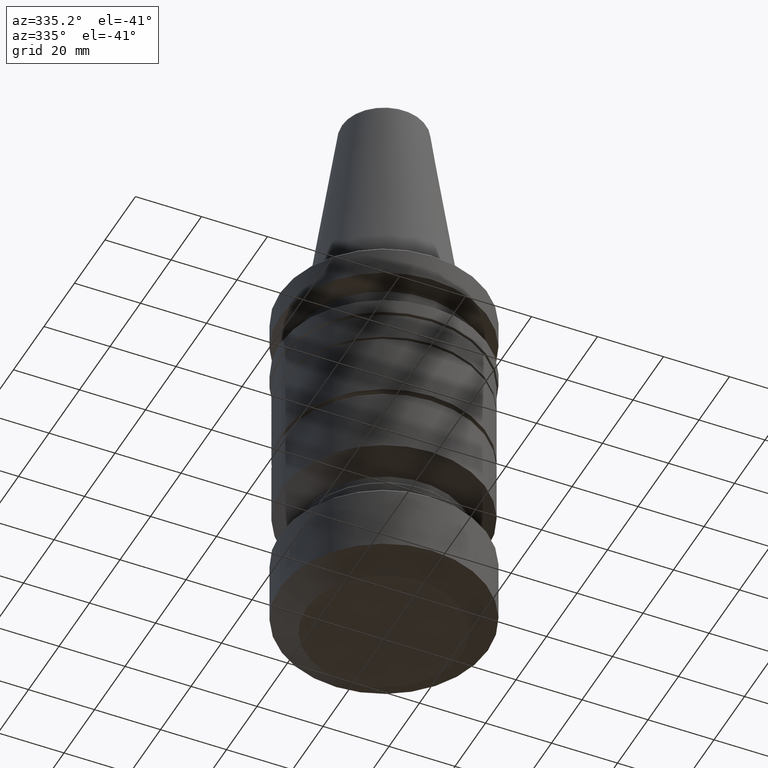
[diagram: clean part render]
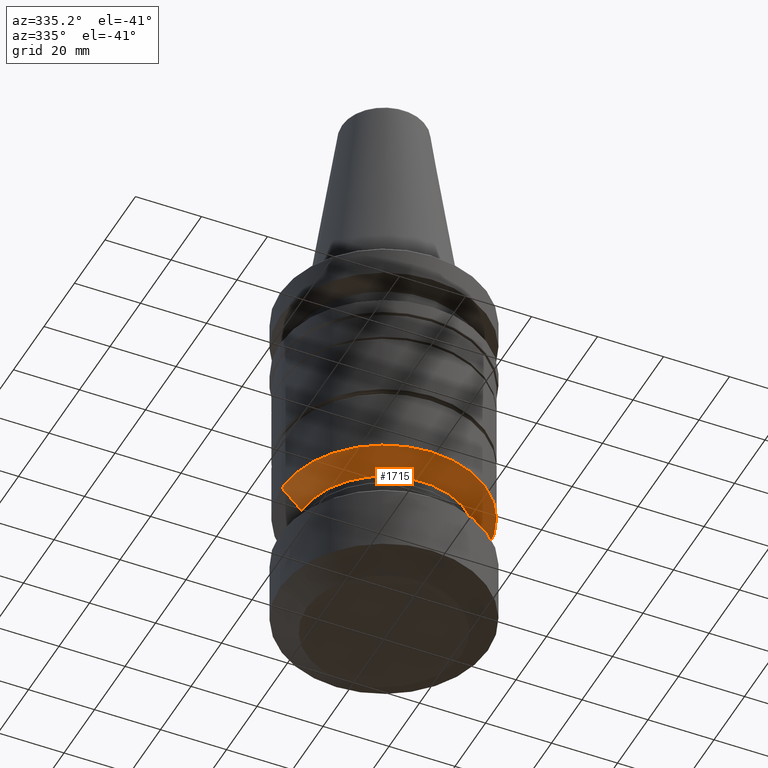
[diagram: same view with one face highlighted and labeled with its STEP entity id]
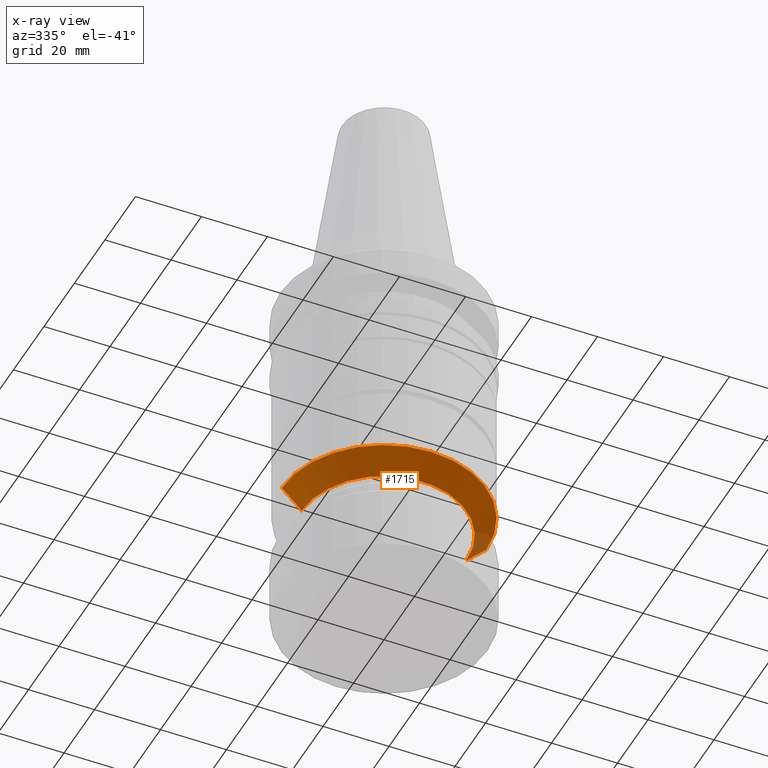
[diagram: x-ray of the same camera — body ghosted, the highlighted face saturated]
A machine part, auxiliary view. The second image highlights one B-rep face of the part: STEP entity #1715.
The next image is the same camera in x-ray: the body ghosted, the highlighted face saturated — about 4% of this face is hidden behind the body in this view.
In plain terms, the highlighted conical surface has half-angle 45 deg.
Its self-contained STEP definition (entity closure, byte-faithful):
#31 = CIRCLE ( 'NONE', #1655, 30.99999999999980800 ) ;
#63 = ORIENTED_EDGE ( 'NONE', *, *, #1005, .F. ) ;
#75 = DIRECTION ( 'NONE',  ( 0.7071067811865477900, 0.0000000000000000000, 0.7071067811865473500 ) ) ;
#106 = DIRECTION ( 'NONE',  ( 1.000000000000000000, 0.0000000000000000000, 0.0000000000000000000 ) ) ;
#137 = CARTESIAN_POINT ( 'NONE',  ( 0.0000000000000000000, 0.0000000000000000000, -80.05000000000661900 ) ) ;
#264 = DIRECTION ( 'NONE',  ( -0.0000000000000000000, -0.0000000000000000000, 1.000000000000000000 ) ) ;
#268 = VECTOR ( 'NONE', #417, 999.9999999999998900 ) ;
#329 = CARTESIAN_POINT ( 'NONE',  ( -30.99999999999980800, 3.796405077356772200E-015, -74.00000000000650900 ) ) ;
#417 = DIRECTION ( 'NONE',  ( -0.7071067811865477900, 8.659560562354936600E-017, 0.7071067811865473500 ) ) ;
#435 = DIRECTION ( 'NONE',  ( -0.0000000000000000000, -0.0000000000000000000, 1.000000000000000000 ) ) ;
#477 = CARTESIAN_POINT ( 'NONE',  ( 24.94999999999969400, 0.0000000000000000000, -80.05000000000661900 ) ) ;
#480 = AXIS2_PLACEMENT_3D ( 'NONE', #137, #264, #1014 ) ;
#621 = VERTEX_POINT ( 'NONE', #477 ) ;
#918 = FACE_OUTER_BOUND ( 'NONE', #1788, .T. ) ;
#950 = CARTESIAN_POINT ( 'NONE',  ( 24.94999999999969400, 0.0000000000000000000, -80.05000000000661900 ) ) ;
#989 = DIRECTION ( 'NONE',  ( -0.0000000000000000000, -0.0000000000000000000, 1.000000000000000000 ) ) ;
#1002 = CIRCLE ( 'NONE', #1191, 24.94999999999969400 ) ;
#1005 = EDGE_CURVE ( 'NONE', #1205, #1846, #31, .T. ) ;
#1014 = DIRECTION ( 'NONE',  ( 1.000000000000000000, 0.0000000000000000000, 0.0000000000000000000 ) ) ;
#1042 = LINE ( 'NONE', #1631, #268 ) ;
#1094 = ORIENTED_EDGE ( 'NONE', *, *, #1391, .T. ) ;
#1143 = ORIENTED_EDGE ( 'NONE', *, *, #1241, .T. ) ;
#1153 = VERTEX_POINT ( 'NONE', #1541 ) ;
#1191 = AXIS2_PLACEMENT_3D ( 'NONE', #1353, #435, #1502 ) ;
#1205 = VERTEX_POINT ( 'NONE', #329 ) ;
#1241 = EDGE_CURVE ( 'NONE', #621, #1846, #1871, .T. ) ;
#1305 = ORIENTED_EDGE ( 'NONE', *, *, #1794, .F. ) ;
#1320 = VECTOR ( 'NONE', #75, 999.9999999999998900 ) ;
#1353 = CARTESIAN_POINT ( 'NONE',  ( 0.0000000000000000000, 0.0000000000000000000, -80.05000000000661900 ) ) ;
#1362 = CONICAL_SURFACE ( 'NONE', #480, 24.94999999999969400, 0.7853981633974485000 ) ;
#1391 = EDGE_CURVE ( 'NONE', #1153, #621, #1002, .T. ) ;
#1502 = DIRECTION ( 'NONE',  ( 1.000000000000000000, 0.0000000000000000000, 0.0000000000000000000 ) ) ;
#1541 = CARTESIAN_POINT ( 'NONE',  ( -24.94999999999969400, 3.425949420614690400E-015, -80.05000000000661900 ) ) ;
#1631 = CARTESIAN_POINT ( 'NONE',  ( -24.94999999999969400, 3.055493763872608900E-015, -80.05000000000661900 ) ) ;
#1655 = AXIS2_PLACEMENT_3D ( 'NONE', #1897, #989, #106 ) ;
#1678 = CARTESIAN_POINT ( 'NONE',  ( 30.99999999999980800, 0.0000000000000000000, -74.00000000000650900 ) ) ;
#1715 = ADVANCED_FACE ( 'NONE', ( #918 ), #1362, .T. ) ;
#1788 = EDGE_LOOP ( 'NONE', ( #1305, #1094, #1143, #63 ) ) ;
#1794 = EDGE_CURVE ( 'NONE', #1153, #1205, #1042, .T. ) ;
#1846 = VERTEX_POINT ( 'NONE', #1678 ) ;
#1871 = LINE ( 'NONE', #950, #1320 ) ;
#1897 = CARTESIAN_POINT ( 'NONE',  ( 0.0000000000000000000, 0.0000000000000000000, -74.00000000000650900 ) ) ;